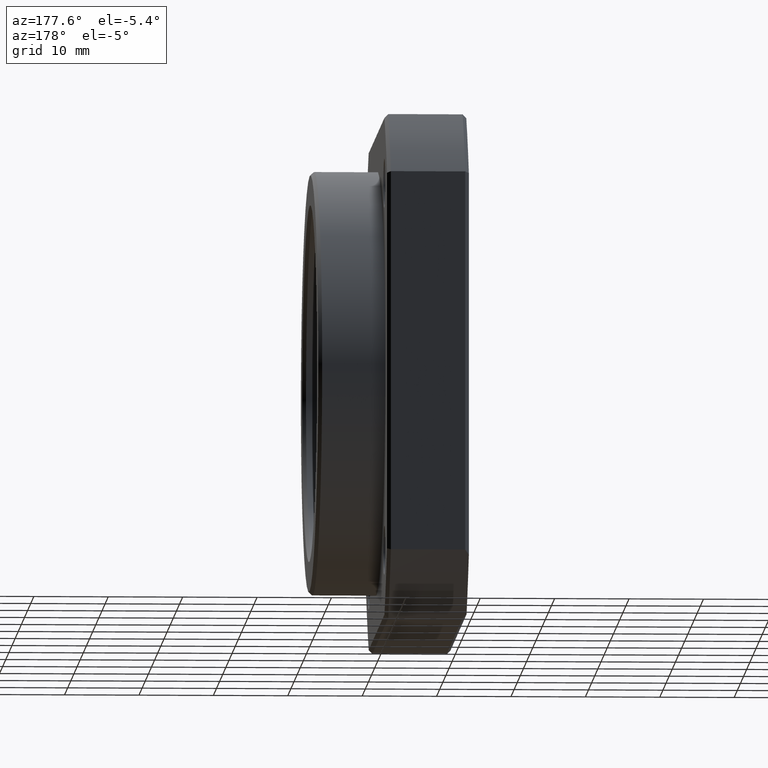
[diagram: clean part render]
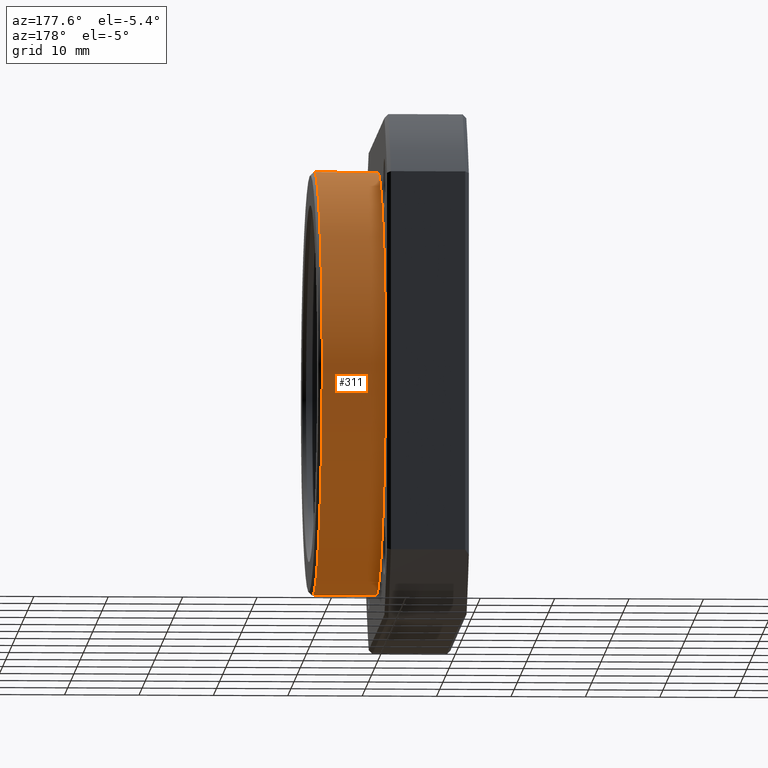
[diagram: same view with one face highlighted and labeled with its STEP entity id]
A machine part, auxiliary view. The second image highlights one B-rep face of the part: STEP entity #311.
In plain terms, the highlighted cylindrical surface (partial cylindrical patch) has radius 28.5 mm, axis along (-1, -0, -0).
Its self-contained STEP definition (entity closure, byte-faithful):
#184 = VERTEX_POINT ( 'NONE', #2254 ) ;
#186 = EDGE_CURVE ( 'NONE', #187, #184, #2253, .T. ) ;
#187 = VERTEX_POINT ( 'NONE', #2248 ) ;
#311 = ADVANCED_FACE ( 'NONE', ( #2508 ), #2507, .T. ) ;
#312 = EDGE_LOOP ( 'NONE', ( #313, #314, #317, #320 ) ) ;
#313 = ORIENTED_EDGE ( 'NONE', *, *, #186, .T. ) ;
#314 = ORIENTED_EDGE ( 'NONE', *, *, #315, .T. ) ;
#315 = EDGE_CURVE ( 'NONE', #184, #316, #2502, .T. ) ;
#316 = VERTEX_POINT ( 'NONE', #2498 ) ;
#317 = ORIENTED_EDGE ( 'NONE', *, *, #318, .F. ) ;
#318 = EDGE_CURVE ( 'NONE', #319, #316, #2497, .T. ) ;
#319 = VERTEX_POINT ( 'NONE', #2492 ) ;
#320 = ORIENTED_EDGE ( 'NONE', *, *, #321, .F. ) ;
#321 = EDGE_CURVE ( 'NONE', #187, #319, #2555, .T. ) ;
#2248 = CARTESIAN_POINT ( 'NONE',  ( 19.49999999999998900, 0.0000000000000000000, 28.50000000000000000 ) ) ;
#2249 = DIRECTION ( 'NONE',  ( 0.0000000000000000000, 0.0000000000000000000, 1.000000000000000000 ) ) ;
#2250 = DIRECTION ( 'NONE',  ( -1.000000000000000000, -0.0000000000000000000, -0.0000000000000000000 ) ) ;
#2251 = CARTESIAN_POINT ( 'NONE',  ( 19.49999999999998900, 0.0000000000000000000, 0.0000000000000000000 ) ) ;
#2252 = AXIS2_PLACEMENT_3D ( 'NONE', #2251, #2250, #2249 ) ;
#2253 = CIRCLE ( 'NONE', #2252, 28.50000000000000000 ) ;
#2254 = CARTESIAN_POINT ( 'NONE',  ( 19.49999999999998900, 3.490128108393775200E-015, -28.50000000000000000 ) ) ;
#2492 = CARTESIAN_POINT ( 'NONE',  ( 10.99999999999999600, 0.0000000000000000000, 28.50000000000000000 ) ) ;
#2493 = DIRECTION ( 'NONE',  ( 0.0000000000000000000, 0.0000000000000000000, 1.000000000000000000 ) ) ;
#2494 = DIRECTION ( 'NONE',  ( -1.000000000000000000, -0.0000000000000000000, -0.0000000000000000000 ) ) ;
#2495 = CARTESIAN_POINT ( 'NONE',  ( 10.99999999999999600, 0.0000000000000000000, 0.0000000000000000000 ) ) ;
#2496 = AXIS2_PLACEMENT_3D ( 'NONE', #2495, #2494, #2493 ) ;
#2497 = CIRCLE ( 'NONE', #2496, 28.50000000000000000 ) ;
#2498 = CARTESIAN_POINT ( 'NONE',  ( 10.99999999999999600, 3.490128108393775200E-015, -28.50000000000000000 ) ) ;
#2499 = DIRECTION ( 'NONE',  ( -1.000000000000000000, -0.0000000000000000000, -0.0000000000000000000 ) ) ;
#2500 = VECTOR ( 'NONE', #2499, 1000.000000000000000 ) ;
#2501 = CARTESIAN_POINT ( 'NONE',  ( -81.64660725642808400, 3.490128108393775200E-015, -28.50000000000000000 ) ) ;
#2502 = LINE ( 'NONE', #2501, #2500 ) ;
#2503 = DIRECTION ( 'NONE',  ( 0.0000000000000000000, 0.0000000000000000000, 1.000000000000000000 ) ) ;
#2504 = DIRECTION ( 'NONE',  ( -1.000000000000000000, -0.0000000000000000000, -0.0000000000000000000 ) ) ;
#2505 = CARTESIAN_POINT ( 'NONE',  ( -81.64660725642808400, 0.0000000000000000000, 0.0000000000000000000 ) ) ;
#2506 = AXIS2_PLACEMENT_3D ( 'NONE', #2505, #2504, #2503 ) ;
#2507 = CYLINDRICAL_SURFACE ( 'NONE', #2506, 28.50000000000000000 ) ;
#2508 = FACE_OUTER_BOUND ( 'NONE', #312, .T. ) ;
#2551 = DIRECTION ( 'NONE',  ( -1.000000000000000000, -0.0000000000000000000, -0.0000000000000000000 ) ) ;
#2553 = VECTOR ( 'NONE', #2551, 1000.000000000000000 ) ;
#2554 = CARTESIAN_POINT ( 'NONE',  ( -81.64660725642808400, 0.0000000000000000000, 28.50000000000000000 ) ) ;
#2555 = LINE ( 'NONE', #2554, #2553 ) ;